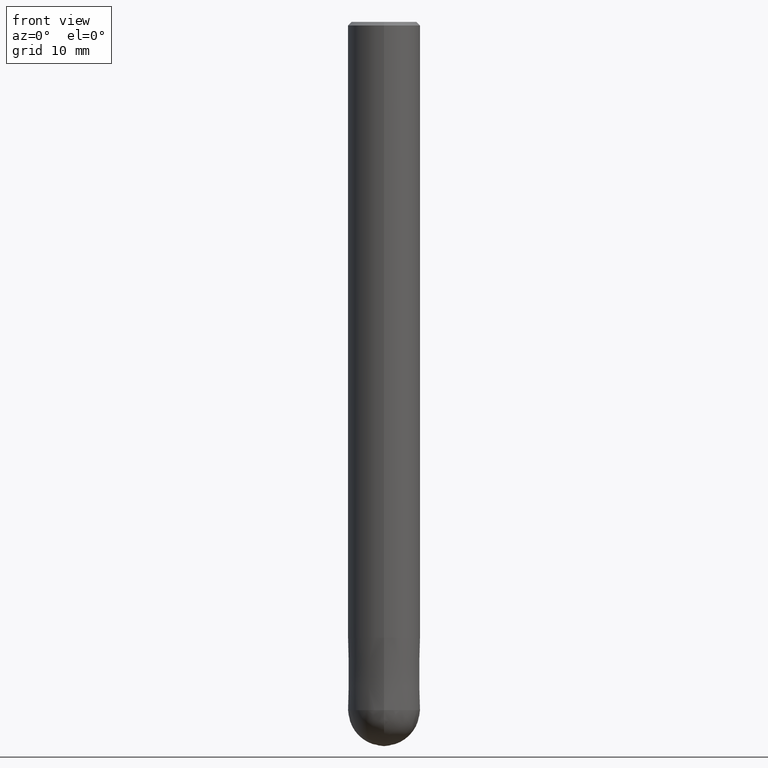
[diagram: clean part render]
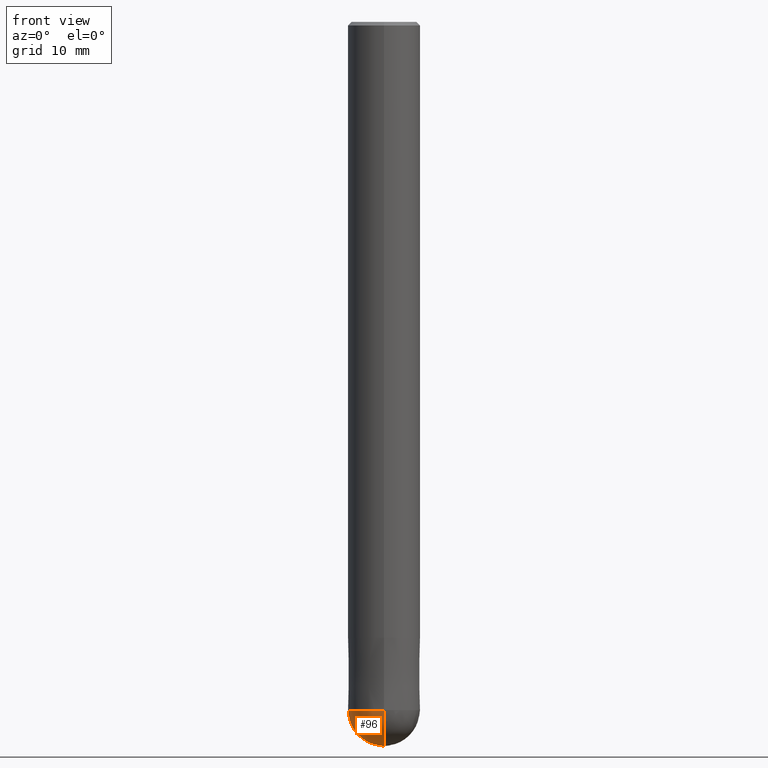
[diagram: same view with one face highlighted and labeled with its STEP entity id]
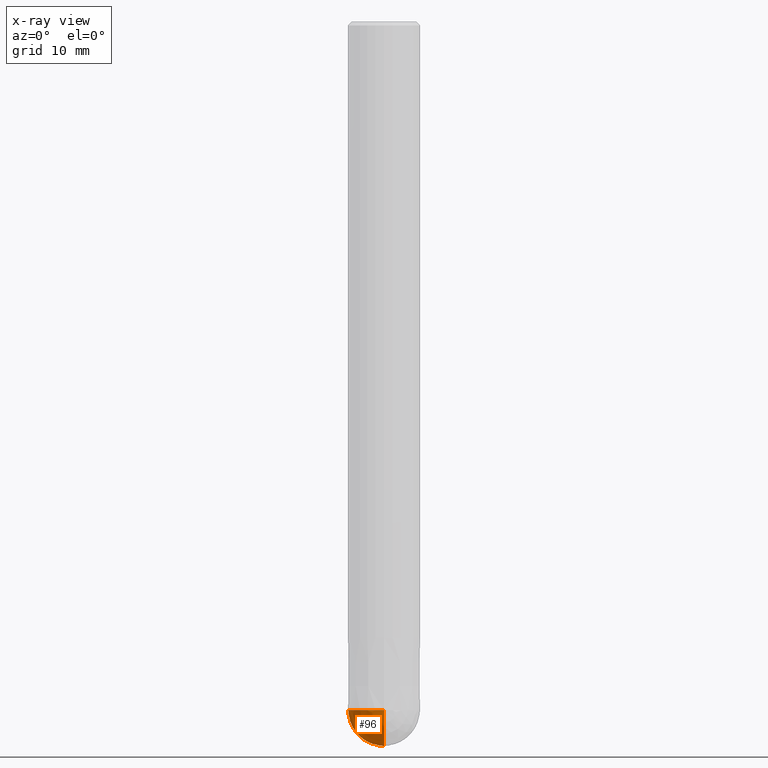
[diagram: x-ray of the same camera — body ghosted, the highlighted face saturated]
A machine part, front view. The second image highlights one B-rep face of the part: STEP entity #96.
The next image is the same camera in x-ray: the body ghosted, the highlighted face saturated — about 0% of this face is hidden behind the body in this view.
In plain terms, the highlighted spherical surface has radius 5 mm.
Its self-contained STEP definition (entity closure, byte-faithful):
#62=EDGE_CURVE('',#110,#116,#154,.T.);
#94=EDGE_CURVE('',#110,#116,#192,.T.);
#96=ADVANCED_FACE('',(#194),#195,.T.);
#110=VERTEX_POINT('',#212);
#116=VERTEX_POINT('',#219);
#154=CIRCLE('',#248,4.99999999999999);
#192=CIRCLE('',#297,5.0);
#194=FACE_OUTER_BOUND('',#299,.T.);
#195=SPHERICAL_SURFACE('',#300,4.99999999999999);
#212=CARTESIAN_POINT('',(6.12303176911188E-016,-5.0,-95.0));
#219=CARTESIAN_POINT('',(0.0,5.0,-95.0));
#248=AXIS2_PLACEMENT_3D('',#356,#357,#358);
#297=AXIS2_PLACEMENT_3D('',#412,#413,#414);
#299=EDGE_LOOP('',(#416,#417));
#300=AXIS2_PLACEMENT_3D('',#418,#419,#420);
#356=CARTESIAN_POINT('',(0.0,0.0,-95.0));
#357=DIRECTION('',(1.0,0.0,1.22460635382238E-016));
#358=DIRECTION('',(-1.22460635382238E-016,0.0,1.0));
#412=CARTESIAN_POINT('',(0.0,0.0,-95.0));
#413=DIRECTION('',(0.0,0.0,-1.0));
#414=DIRECTION('',(0.0,1.0,0.0));
#416=ORIENTED_EDGE('',*,*,#62,.F.);
#417=ORIENTED_EDGE('',*,*,#94,.T.);
#418=CARTESIAN_POINT('',(0.0,0.0,-95.0));
#419=DIRECTION('',(0.0,1.0,0.0));
#420=DIRECTION('',(0.0,0.0,-1.0));